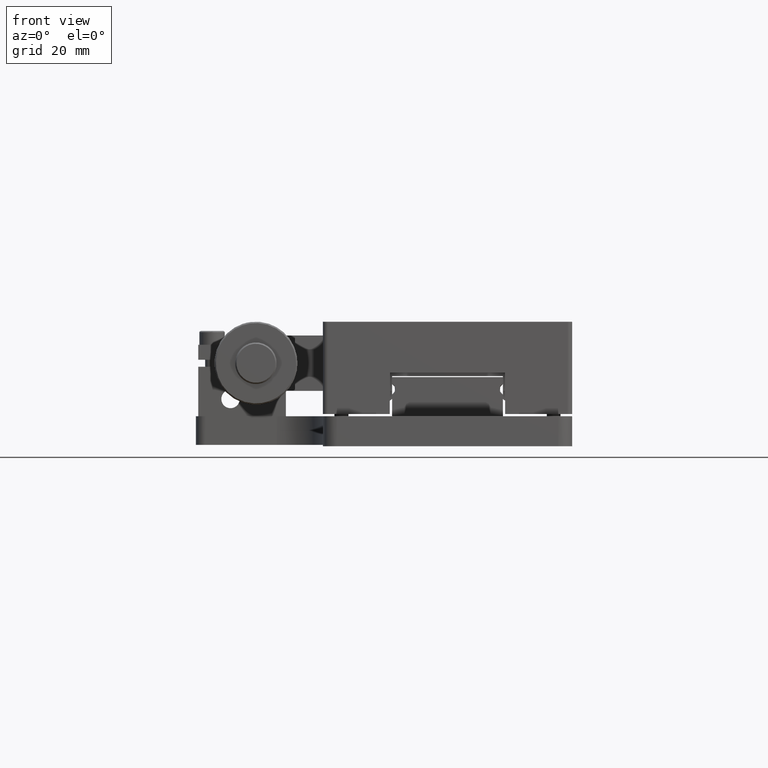
[diagram: clean part render]
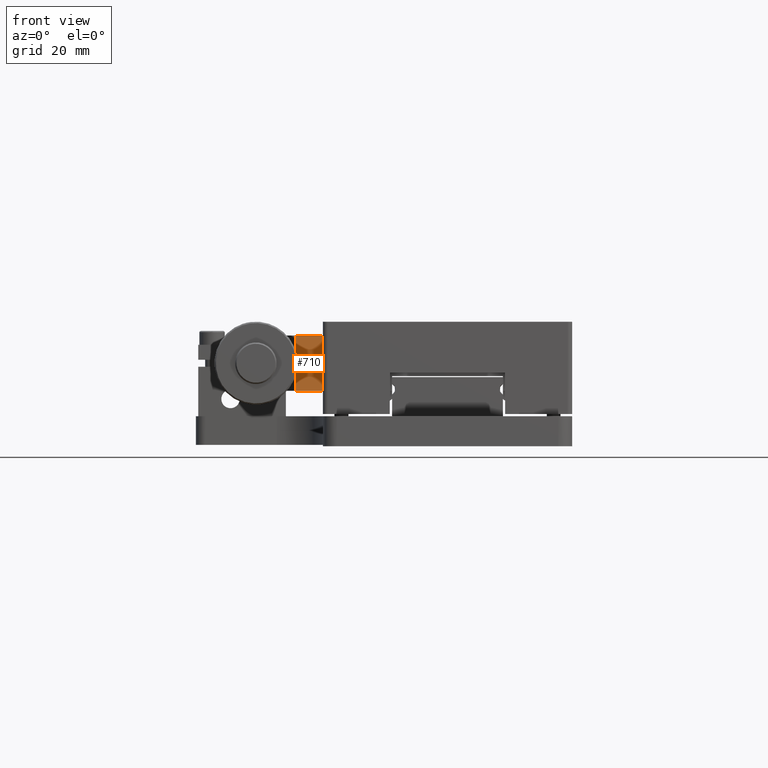
[diagram: same view with one face highlighted and labeled with its STEP entity id]
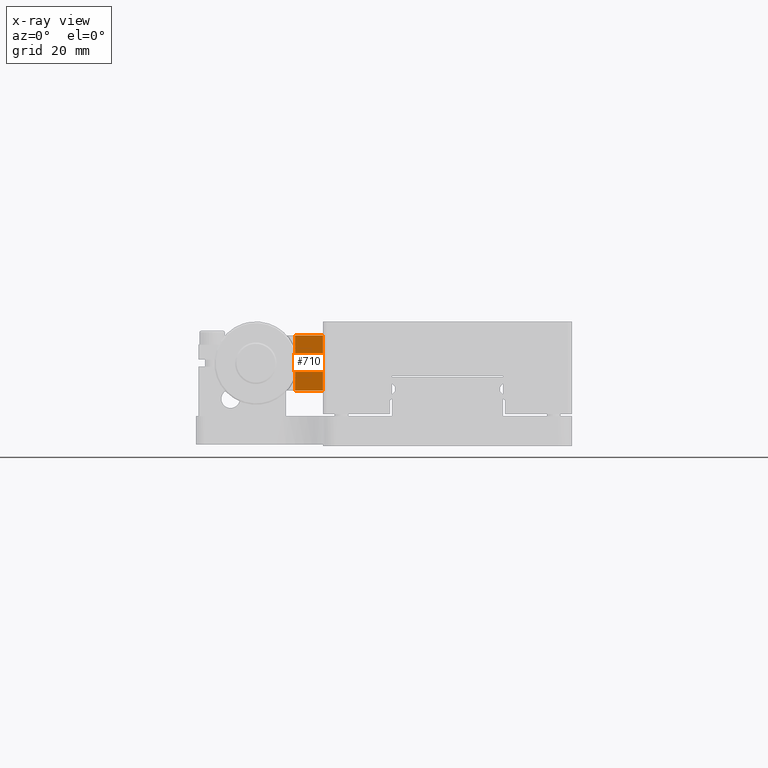
[diagram: x-ray of the same camera — body ghosted, the highlighted face saturated]
A machine part, front view. The second image highlights one B-rep face of the part: STEP entity #710.
The next image is the same camera in x-ray: the body ghosted, the highlighted face saturated — about 3% of this face is hidden behind the body in this view.
In plain terms, the highlighted face is a freeform B-spline surface patch.
Its self-contained STEP definition (entity closure, byte-faithful):
#710=ADVANCED_FACE('',(#1363),#24000,.T.);
#1363=FACE_OUTER_BOUND('',#2092,.T.);
#2092=EDGE_LOOP('',(#4338,#4339,#4340,#4341));
#4338=ORIENTED_EDGE('',*,*,#20150,.F.);
#4339=ORIENTED_EDGE('',*,*,#20147,.F.);
#4340=ORIENTED_EDGE('',*,*,#20179,.F.);
#4341=ORIENTED_EDGE('',*,*,#20173,.F.);
#7907=PCURVE('',#23992,#11532);
#7911=PCURVE('',#23993,#11536);
#7940=PCURVE('',#23996,#11565);
#7953=PCURVE('',#23997,#11578);
#7963=PCURVE('',#24000,#11588);
#7964=PCURVE('',#24000,#11589);
#7965=PCURVE('',#24000,#11590);
#7966=PCURVE('',#24000,#11591);
#11532=DEFINITIONAL_REPRESENTATION('',(#15511),#50008);
#11536=DEFINITIONAL_REPRESENTATION('',(#15518),#50008);
#11565=DEFINITIONAL_REPRESENTATION('',(#15545),#50008);
#11578=DEFINITIONAL_REPRESENTATION('',(#15557),#50008);
#11588=DEFINITIONAL_REPRESENTATION('',(#15568),#50008);
#11589=DEFINITIONAL_REPRESENTATION('',(#15569),#50008);
#11590=DEFINITIONAL_REPRESENTATION('',(#15570),#50008);
#11591=DEFINITIONAL_REPRESENTATION('',(#15571),#50008);
#15510=B_SPLINE_CURVE_WITH_KNOTS('',1,(#38337,#38338),.UNSPECIFIED.,.F.,
 .F.,(2,2),(0.,12.),.UNSPECIFIED.);
#15511=B_SPLINE_CURVE_WITH_KNOTS('',1,(#38339,#38340),.UNSPECIFIED.,.F.,
 .F.,(2,2),(0.,12.),.UNSPECIFIED.);
#15517=B_SPLINE_CURVE_WITH_KNOTS('',1,(#38351,#38352),.UNSPECIFIED.,.F.,
 .F.,(2,2),(-6.,0.),.UNSPECIFIED.);
#15518=B_SPLINE_CURVE_WITH_KNOTS('',1,(#38353,#38354),.UNSPECIFIED.,.F.,
 .F.,(2,2),(-6.,0.),.UNSPECIFIED.);
#15544=B_SPLINE_CURVE_WITH_KNOTS('',1,(#38514,#38515),.UNSPECIFIED.,.F.,
 .F.,(2,2),(-12.,0.),.UNSPECIFIED.);
#15545=B_SPLINE_CURVE_WITH_KNOTS('',1,(#38516,#38517),.UNSPECIFIED.,.F.,
 .F.,(2,2),(-12.,0.),.UNSPECIFIED.);
#15556=B_SPLINE_CURVE_WITH_KNOTS('',1,(#38569,#38570),.UNSPECIFIED.,.F.,
 .F.,(2,2),(0.,6.),.UNSPECIFIED.);
#15557=B_SPLINE_CURVE_WITH_KNOTS('',1,(#38571,#38572),.UNSPECIFIED.,.F.,
 .F.,(2,2),(0.,6.),.UNSPECIFIED.);
#15568=B_SPLINE_CURVE_WITH_KNOTS('',1,(#38593,#38594),.UNSPECIFIED.,.F.,
 .F.,(2,2),(-6.,0.),.UNSPECIFIED.);
#15569=B_SPLINE_CURVE_WITH_KNOTS('',1,(#38595,#38596),.UNSPECIFIED.,.F.,
 .F.,(2,2),(0.,12.),.UNSPECIFIED.);
#15570=B_SPLINE_CURVE_WITH_KNOTS('',1,(#38597,#38598),.UNSPECIFIED.,.F.,
 .F.,(2,2),(0.,6.),.UNSPECIFIED.);
#15571=B_SPLINE_CURVE_WITH_KNOTS('',1,(#38599,#38600),.UNSPECIFIED.,.F.,
 .F.,(2,2),(-12.,0.),.UNSPECIFIED.);
#18292=SURFACE_CURVE('',#15510,(#7907,#7964),.PCURVE_S1.);
#18295=SURFACE_CURVE('',#15517,(#7911,#7963),.PCURVE_S1.);
#18318=SURFACE_CURVE('',#15544,(#7940,#7966),.PCURVE_S1.);
#18324=SURFACE_CURVE('',#15556,(#7953,#7965),.PCURVE_S1.);
#20147=EDGE_CURVE('',#23185,#23186,#18292,.T.);
#20150=EDGE_CURVE('',#23186,#23188,#18295,.T.);
#20173=EDGE_CURVE('',#23188,#23204,#18318,.T.);
#20179=EDGE_CURVE('',#23204,#23185,#18324,.T.);
#23185=VERTEX_POINT('',#30828);
#23186=VERTEX_POINT('',#30829);
#23188=VERTEX_POINT('',#30831);
#23204=VERTEX_POINT('',#30847);
#23992=B_SPLINE_SURFACE_WITH_KNOTS('',1,1,((#27424,#27425),(#27426,#27427)),
 .UNSPECIFIED.,.F.,.F.,.F.,(2,2),(2,2),(-37.9200000000001,37.92),(-10.3699999999999,
13.87),.UNSPECIFIED.);
#23993=B_SPLINE_SURFACE_WITH_KNOTS('',1,1,((#27428,#27429),(#27430,#27431)),
 .UNSPECIFIED.,.F.,.F.,.F.,(2,2),(2,2),(1.18,33.82),(-1.92,19.92),
 .UNSPECIFIED.);
#23996=B_SPLINE_SURFACE_WITH_KNOTS('',1,1,((#27476,#27477),(#27478,#27479)),
 .UNSPECIFIED.,.F.,.F.,.F.,(2,2),(2,2),(-1.32,13.32),(-12.02,11.02),
 .UNSPECIFIED.);
#23997=B_SPLINE_SURFACE_WITH_KNOTS('',1,1,((#27480,#27481),(#27482,#27483)),
 .UNSPECIFIED.,.F.,.F.,.F.,(2,2),(2,2),(-33.82,-1.18),(-21.92,-0.0799999999999981),
 .UNSPECIFIED.);
#24000=B_SPLINE_SURFACE_WITH_KNOTS('',1,1,((#27492,#27493),(#27494,#27495)),
 .UNSPECIFIED.,.F.,.F.,.F.,(2,2),(2,2),(-6.72,0.720000000000004),(-1.32,
13.32),.UNSPECIFIED.);
#27424=CARTESIAN_POINT('',(-26.3729506502019,14.3531964156234,52.4487996664619));
#27425=CARTESIAN_POINT('',(-26.3729506502019,-9.88680358437654,52.4487996664619));
#27426=CARTESIAN_POINT('',(-26.3729506502019,14.3531964156234,-23.3912003335382));
#27427=CARTESIAN_POINT('',(-26.3729506502019,-9.88680358437654,-23.3912003335382));
#27428=CARTESIAN_POINT('',(-24.4529506502019,-2.76680358437655,-17.2912003335381));
#27429=CARTESIAN_POINT('',(-46.2929506502019,-2.76680358437656,-17.2912003335381));
#27430=CARTESIAN_POINT('',(-24.4529506502019,-2.76680358437655,15.3487996664619));
#27431=CARTESIAN_POINT('',(-46.2929506502019,-2.76680358437656,15.3487996664619));
#27476=CARTESIAN_POINT('',(-32.3729506502019,10.5531964156235,-8.49120033353815));
#27477=CARTESIAN_POINT('',(-32.3729506502019,10.5531964156235,14.5487996664619));
#27478=CARTESIAN_POINT('',(-32.3729506502019,-4.08680358437655,-8.49120033353815));
#27479=CARTESIAN_POINT('',(-32.3729506502019,-4.08680358437655,14.5487996664619));
#27480=CARTESIAN_POINT('',(-24.4529506502019,9.23319641562345,15.3487996664619));
#27481=CARTESIAN_POINT('',(-46.2929506502019,9.23319641562345,15.3487996664619));
#27482=CARTESIAN_POINT('',(-24.4529506502019,9.23319641562345,-17.2912003335381));
#27483=CARTESIAN_POINT('',(-46.2929506502019,9.23319641562345,-17.2912003335381));
#27492=CARTESIAN_POINT('',(-25.6529506502019,10.5531964156235,12.5287996664619));
#27493=CARTESIAN_POINT('',(-25.6529506502019,-4.08680358437655,12.5287996664619));
#27494=CARTESIAN_POINT('',(-33.0929506502019,10.5531964156235,12.5287996664619));
#27495=CARTESIAN_POINT('',(-33.0929506502019,-4.08680358437655,12.5287996664619));
#30828=CARTESIAN_POINT('',(-26.3729506502019,9.23319641562345,12.5287996664619));
#30829=CARTESIAN_POINT('',(-26.3729506502019,-2.76680358437655,12.5287996664619));
#30831=CARTESIAN_POINT('',(-32.3729506502019,-2.76680358437655,12.5287996664619));
#30847=CARTESIAN_POINT('',(-32.3729506502019,9.23319641562345,12.5287996664619));
#38337=CARTESIAN_POINT('',(-26.3729506502019,9.23319641562345,12.5287996664619));
#38338=CARTESIAN_POINT('',(-26.3729506502019,-2.76680358437655,12.5287996664619));
#38339=CARTESIAN_POINT('',(1.9999999999999,-5.25));
#38340=CARTESIAN_POINT('',(1.9999999999999,6.75));
#38351=CARTESIAN_POINT('',(-26.3729506502019,-2.76680358437655,12.5287996664619));
#38352=CARTESIAN_POINT('',(-32.3729506502019,-2.76680358437655,12.5287996664619));
#38353=CARTESIAN_POINT('',(31.,-2.10356980673828E-15));
#38354=CARTESIAN_POINT('',(31.,6.));
#38514=CARTESIAN_POINT('',(-32.3729506502019,-2.76680358437655,12.5287996664619));
#38515=CARTESIAN_POINT('',(-32.3729506502019,9.23319641562345,12.5287996664619));
#38516=CARTESIAN_POINT('',(12.,9.00000000000004));
#38517=CARTESIAN_POINT('',(-2.52002407717235E-31,9.00000000000004));
#38569=CARTESIAN_POINT('',(-32.3729506502019,9.23319641562345,12.5287996664619));
#38570=CARTESIAN_POINT('',(-26.3729506502019,9.23319641562345,12.5287996664619));
#38571=CARTESIAN_POINT('',(-31.,-14.));
#38572=CARTESIAN_POINT('',(-31.,-20.));
#38593=CARTESIAN_POINT('',(-6.,12.));
#38594=CARTESIAN_POINT('',(1.60906563498275E-15,12.));
#38595=CARTESIAN_POINT('',(-6.,8.04532817491374E-16));
#38596=CARTESIAN_POINT('',(-6.,12.));
#38597=CARTESIAN_POINT('',(0.,0.));
#38598=CARTESIAN_POINT('',(-6.,8.04532817491374E-16));
#38599=CARTESIAN_POINT('',(1.60906563498275E-15,12.));
#38600=CARTESIAN_POINT('',(0.,0.));
#50008=(
GEOMETRIC_REPRESENTATION_CONTEXT(2)
PARAMETRIC_REPRESENTATION_CONTEXT()
REPRESENTATION_CONTEXT('pspace','')
);